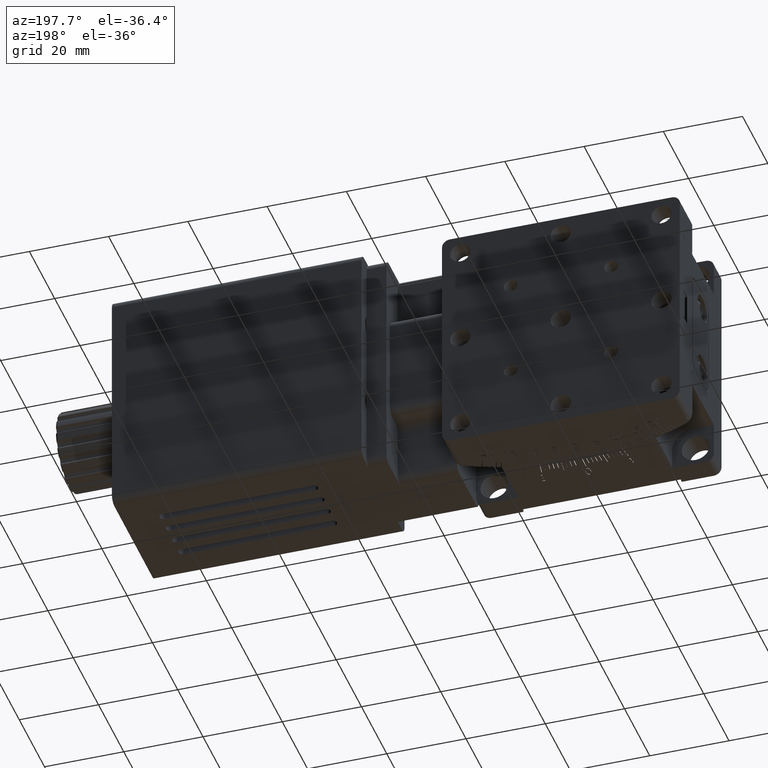
[diagram: clean part render]
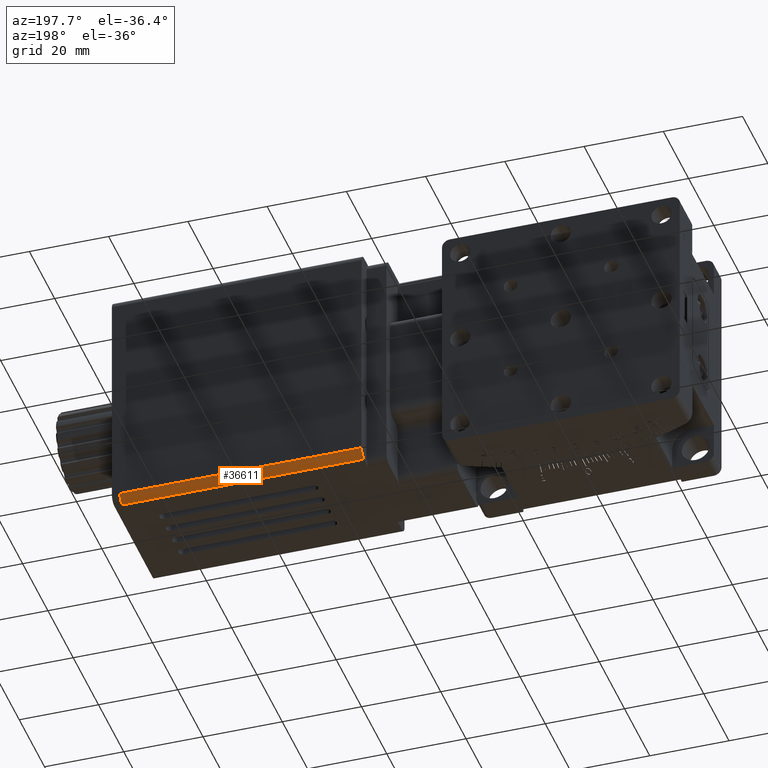
[diagram: same view with one face highlighted and labeled with its STEP entity id]
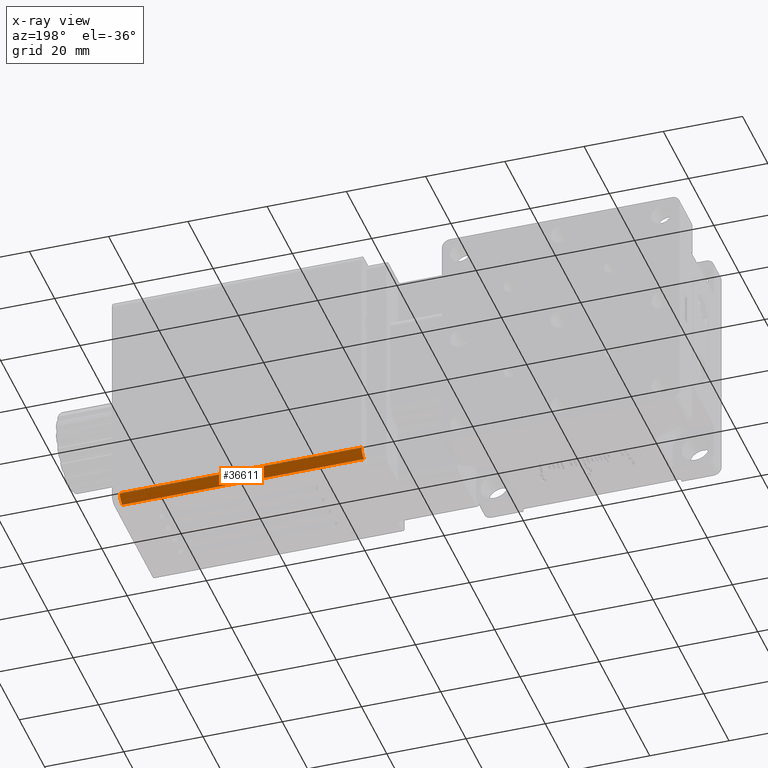
[diagram: x-ray of the same camera — body ghosted, the highlighted face saturated]
A machine part, auxiliary view. The second image highlights one B-rep face of the part: STEP entity #36611.
The next image is the same camera in x-ray: the body ghosted, the highlighted face saturated — about 0% of this face is hidden behind the body in this view.
In plain terms, the highlighted cylindrical surface (edge-blend (fillet) strip) has radius 2 mm, axis along (1, 0, 0).
Its self-contained STEP definition (entity closure, byte-faithful):
#1616 = EDGE_CURVE ( 'NONE', #29223, #20120, #17743, .T. ) ;
#1919 = ORIENTED_EDGE ( 'NONE', *, *, #21961, .F. ) ;
#2732 = DIRECTION ( 'NONE',  ( 0.0000000000000000000, 0.0000000000000000000, -1.000000000000000000 ) ) ;
#2958 = CARTESIAN_POINT ( 'NONE',  ( 50.00000000000000000, 34.00000000000000000, -28.00000000000000700 ) ) ;
#4350 = CYLINDRICAL_SURFACE ( 'NONE', #23919, 1.999999999999998200 ) ;
#5228 = AXIS2_PLACEMENT_3D ( 'NONE', #29189, #23543, #17845 ) ;
#8428 = FACE_OUTER_BOUND ( 'NONE', #18124, .T. ) ;
#10461 = VECTOR ( 'NONE', #14873, 1000.000000000000000 ) ;
#13716 = LINE ( 'NONE', #28833, #35409 ) ;
#14873 = DIRECTION ( 'NONE',  ( -1.000000000000000000, -0.0000000000000000000, -0.0000000000000000000 ) ) ;
#17513 = CARTESIAN_POINT ( 'NONE',  ( 50.00000000000000000, 32.00000000000000700, -28.00000000000000700 ) ) ;
#17743 = CIRCLE ( 'NONE', #24928, 1.999999999999998200 ) ;
#17845 = DIRECTION ( 'NONE',  ( 0.0000000000000000000, 0.0000000000000000000, -1.000000000000000000 ) ) ;
#18124 = EDGE_LOOP ( 'NONE', ( #21107, #1919, #34108, #35101 ) ) ;
#18687 = CARTESIAN_POINT ( 'NONE',  ( 50.00000000000000000, 34.00000000000000000, -28.00000000000000700 ) ) ;
#19390 = CARTESIAN_POINT ( 'NONE',  ( 110.9999999999999900, 32.00000000000000700, -30.00000000000001100 ) ) ;
#20063 = DIRECTION ( 'NONE',  ( 1.000000000000000000, 0.0000000000000000000, 0.0000000000000000000 ) ) ;
#20120 = VERTEX_POINT ( 'NONE', #26713 ) ;
#21107 = ORIENTED_EDGE ( 'NONE', *, *, #1616, .F. ) ;
#21961 = EDGE_CURVE ( 'NONE', #37011, #29223, #33503, .T. ) ;
#23141 = CARTESIAN_POINT ( 'NONE',  ( 50.00000000000000000, 32.00000000000000700, -28.00000000000000700 ) ) ;
#23543 = DIRECTION ( 'NONE',  ( 1.000000000000000000, -0.0000000000000000000, 0.0000000000000000000 ) ) ;
#23919 = AXIS2_PLACEMENT_3D ( 'NONE', #17513, #20063, #28610 ) ;
#24666 = VERTEX_POINT ( 'NONE', #19390 ) ;
#24928 = AXIS2_PLACEMENT_3D ( 'NONE', #23141, #37278, #2732 ) ;
#26713 = CARTESIAN_POINT ( 'NONE',  ( 50.00000000000000000, 32.00000000000000700, -30.00000000000001100 ) ) ;
#28610 = DIRECTION ( 'NONE',  ( 0.0000000000000000000, 0.0000000000000000000, -1.000000000000000000 ) ) ;
#28821 = CARTESIAN_POINT ( 'NONE',  ( 110.9999999999999900, 34.00000000000000000, -28.00000000000000700 ) ) ;
#28833 = CARTESIAN_POINT ( 'NONE',  ( 50.00000000000000000, 32.00000000000000700, -30.00000000000001100 ) ) ;
#29082 = DIRECTION ( 'NONE',  ( 1.000000000000000000, 0.0000000000000000000, 0.0000000000000000000 ) ) ;
#29189 = CARTESIAN_POINT ( 'NONE',  ( 110.9999999999999900, 32.00000000000000700, -28.00000000000000700 ) ) ;
#29223 = VERTEX_POINT ( 'NONE', #18687 ) ;
#31521 = EDGE_CURVE ( 'NONE', #20120, #24666, #13716, .T. ) ;
#33503 = LINE ( 'NONE', #2958, #10461 ) ;
#34108 = ORIENTED_EDGE ( 'NONE', *, *, #37101, .F. ) ;
#34160 = CIRCLE ( 'NONE', #5228, 1.999999999999998200 ) ;
#35101 = ORIENTED_EDGE ( 'NONE', *, *, #31521, .F. ) ;
#35409 = VECTOR ( 'NONE', #29082, 1000.000000000000000 ) ;
#36611 = ADVANCED_FACE ( 'NONE', ( #8428 ), #4350, .T. ) ;
#37011 = VERTEX_POINT ( 'NONE', #28821 ) ;
#37101 = EDGE_CURVE ( 'NONE', #24666, #37011, #34160, .T. ) ;
#37278 = DIRECTION ( 'NONE',  ( -1.000000000000000000, -0.0000000000000000000, 0.0000000000000000000 ) ) ;